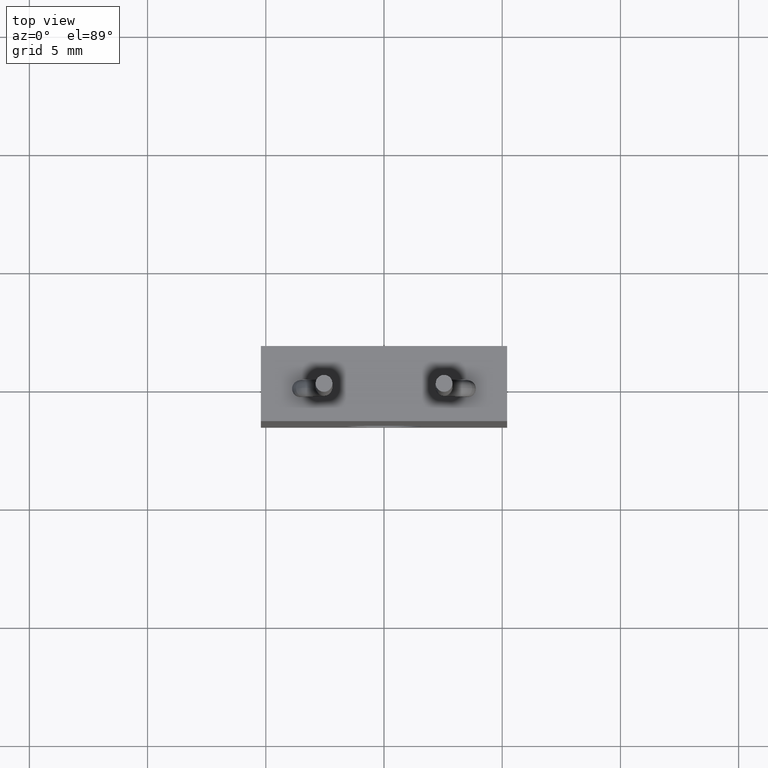
[diagram: clean part render]
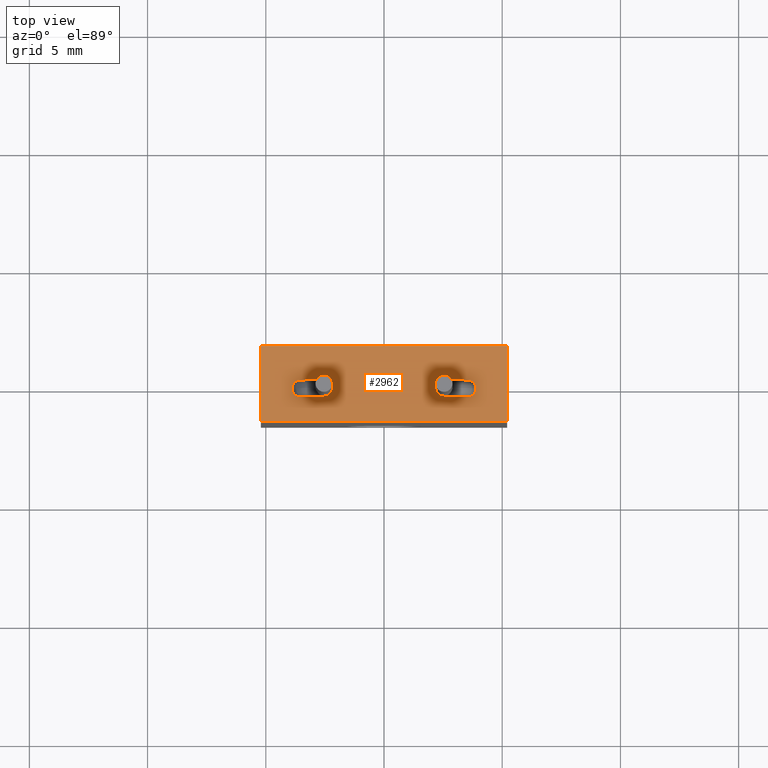
[diagram: same view with one face highlighted and labeled with its STEP entity id]
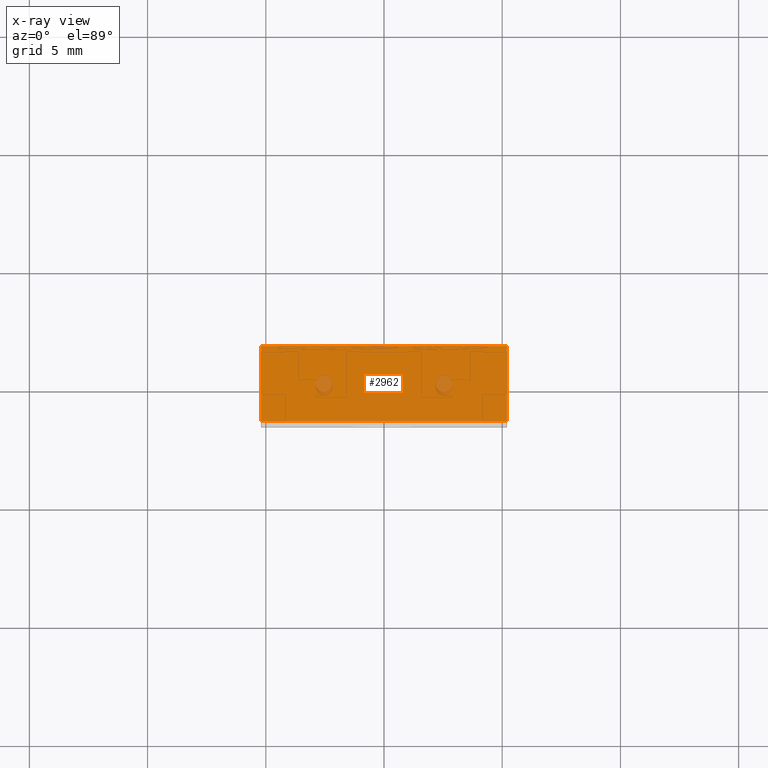
[diagram: x-ray of the same camera — body ghosted, the highlighted face saturated]
A machine part, top view. The second image highlights one B-rep face of the part: STEP entity #2962.
The next image is the same camera in x-ray: the body ghosted, the highlighted face saturated — about 3% of this face is hidden behind the body in this view.
In plain terms, the highlighted planar face has unit normal (0, 0, 1).
Its self-contained STEP definition (entity closure, byte-faithful):
#2635=DIRECTION('',(-1.E0,0.E0,0.E0));
#2636=VECTOR('',#2635,4.1E-1);
#2637=CARTESIAN_POINT('',(2.05E-1,-2.2E-1,-1.25E-1));
#2638=LINE('',#2637,#2636);
#2676=DIRECTION('',(-1.E0,0.E0,0.E0));
#2677=VECTOR('',#2676,4.1E-1);
#2678=CARTESIAN_POINT('',(2.05E-1,-2.2E-1,0.E0));
#2679=LINE('',#2678,#2677);
#2680=DIRECTION('',(0.E0,0.E0,1.E0));
#2681=VECTOR('',#2680,1.25E-1);
#2682=CARTESIAN_POINT('',(2.05E-1,-2.2E-1,-1.25E-1));
#2683=LINE('',#2682,#2681);
#2688=DIRECTION('',(0.E0,0.E0,1.E0));
#2689=VECTOR('',#2688,1.25E-1);
#2690=CARTESIAN_POINT('',(-2.05E-1,-2.2E-1,-1.25E-1));
#2691=LINE('',#2690,#2689);
#2785=CARTESIAN_POINT('',(-2.05E-1,-2.2E-1,-1.25E-1));
#2786=VERTEX_POINT('',#2785);
#2787=CARTESIAN_POINT('',(-2.05E-1,-2.2E-1,0.E0));
#2788=VERTEX_POINT('',#2787);
#2793=CARTESIAN_POINT('',(2.05E-1,-2.2E-1,-1.25E-1));
#2794=VERTEX_POINT('',#2793);
#2815=CARTESIAN_POINT('',(2.05E-1,-2.2E-1,0.E0));
#2816=VERTEX_POINT('',#2815);
#2950=CARTESIAN_POINT('',(-2.05E-1,-2.2E-1,0.E0));
#2951=DIRECTION('',(0.E0,-1.E0,0.E0));
#2952=DIRECTION('',(0.E0,0.E0,-1.E0));
#2953=AXIS2_PLACEMENT_3D('',#2950,#2951,#2952);
#2954=PLANE('',#2953);
#2955=ORIENTED_EDGE('',*,*,#2893,.T.);
#2957=ORIENTED_EDGE('',*,*,#2956,.T.);
#2958=ORIENTED_EDGE('',*,*,#2925,.F.);
#2959=ORIENTED_EDGE('',*,*,#2856,.F.);
#2960=EDGE_LOOP('',(#2955,#2957,#2958,#2959));
#2961=FACE_OUTER_BOUND('',#2960,.F.);
#2962=ADVANCED_FACE('',(#2961),#2954,.T.);
#2856=EDGE_CURVE('',#2794,#2816,#2683,.T.);
#2893=EDGE_CURVE('',#2794,#2786,#2638,.T.);
#2925=EDGE_CURVE('',#2816,#2788,#2679,.T.);
#2956=EDGE_CURVE('',#2786,#2788,#2691,.T.);